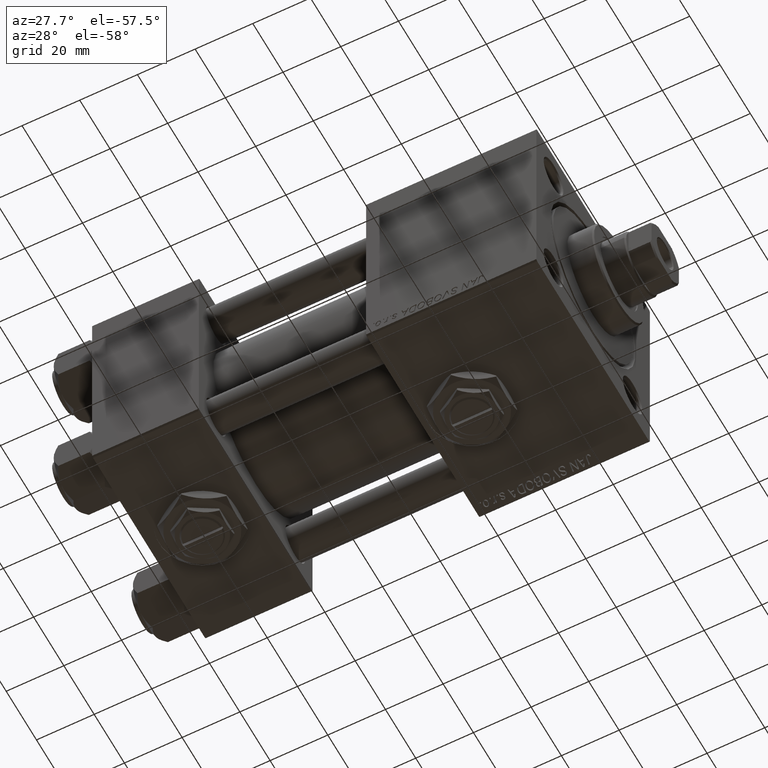
[diagram: clean part render]
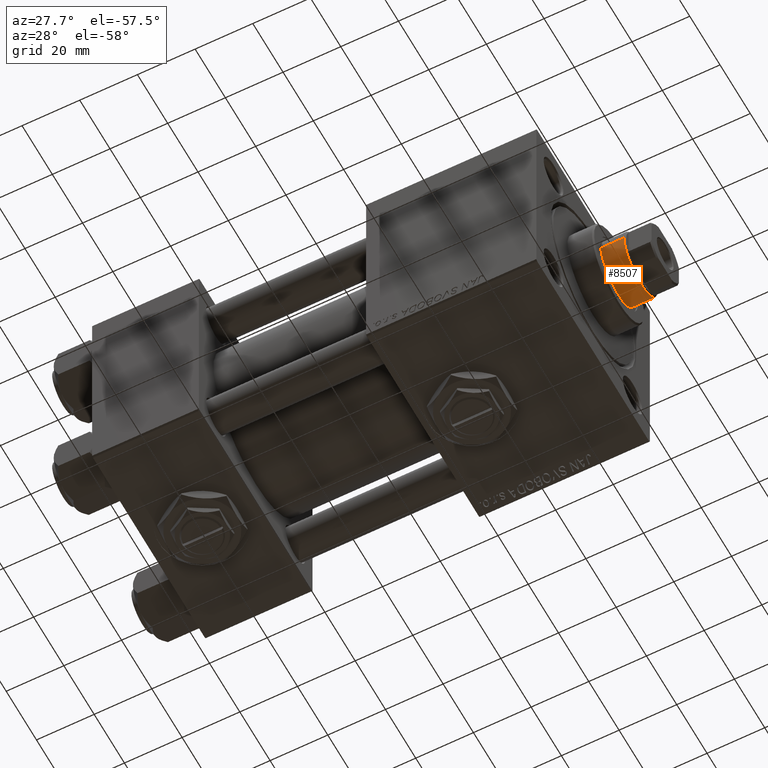
[diagram: same view with one face highlighted and labeled with its STEP entity id]
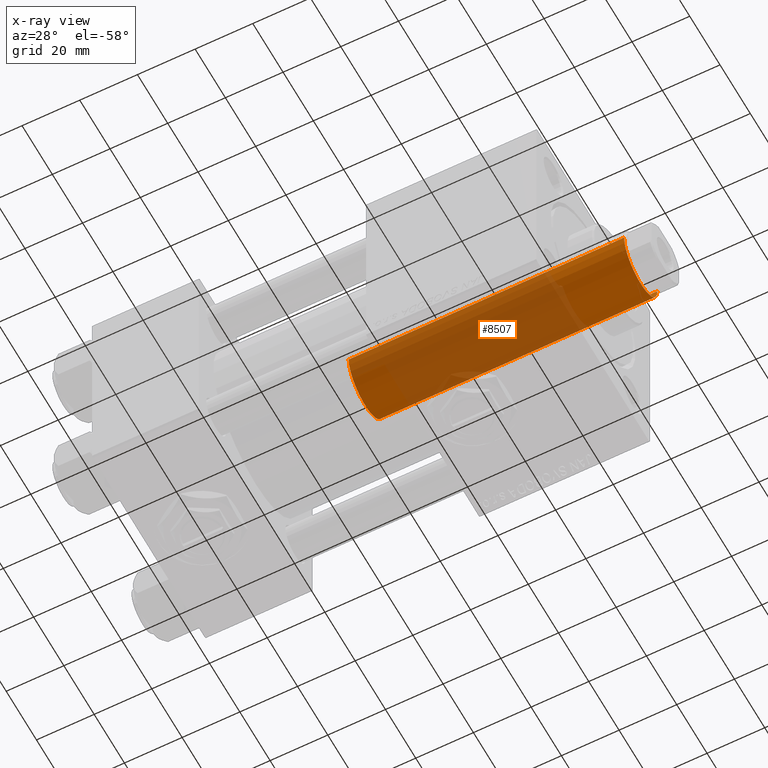
[diagram: x-ray of the same camera — body ghosted, the highlighted face saturated]
A machine part, auxiliary view. The second image highlights one B-rep face of the part: STEP entity #8507.
The next image is the same camera in x-ray: the body ghosted, the highlighted face saturated — about 67% of this face is hidden behind the body in this view.
In plain terms, the highlighted cylindrical surface (edge-blend (fillet) strip) has radius 11 mm, axis along (-1, 0, 0).
Its self-contained STEP definition (entity closure, byte-faithful):
#1091 = DIRECTION ( 'NONE',  ( -0.000000000000000000, -0.000000000000000000, -1.000000000000000000 ) ) ;
#1676 = ORIENTED_EDGE ( 'NONE', *, *, #30367, .F. ) ;
#3794 = AXIS2_PLACEMENT_3D ( 'NONE', #6280, #9973, #29791 ) ;
#5320 = DIRECTION ( 'NONE',  ( -1.000000000000000000, 0.000000000000000000, 0.000000000000000000 ) ) ;
#5605 = EDGE_CURVE ( 'NONE', #46112, #20540, #28273, .T. ) ;
#6280 = CARTESIAN_POINT ( 'NONE',  ( 0.000000000000000000, 0.000000000000000000, 133.5000000000000000 ) ) ;
#6922 = ORIENTED_EDGE ( 'NONE', *, *, #5605, .T. ) ;
#8507 = ADVANCED_FACE ( 'NONE', ( #17175 ), #29614, .T. ) ;
#9973 = DIRECTION ( 'NONE',  ( 0.000000000000000000, 0.000000000000000000, -1.000000000000000000 ) ) ;
#14553 = ORIENTED_EDGE ( 'NONE', *, *, #39588, .T. ) ;
#14852 = AXIS2_PLACEMENT_3D ( 'NONE', #33302, #41512, #5320 ) ;
#16605 = DIRECTION ( 'NONE',  ( 0.000000000000000000, 0.000000000000000000, 1.000000000000000000 ) ) ;
#17175 = FACE_OUTER_BOUND ( 'NONE', #41122, .T. ) ;
#18756 = AXIS2_PLACEMENT_3D ( 'NONE', #40939, #16605, #32740 ) ;
#20540 = VERTEX_POINT ( 'NONE', #49751 ) ;
#21909 = LINE ( 'NONE', #49947, #27039 ) ;
#23409 = CARTESIAN_POINT ( 'NONE',  ( -11.00000000000000000, 0.000000000000000000, 133.5000000000000000 ) ) ;
#25315 = VERTEX_POINT ( 'NONE', #34370 ) ;
#26163 = CARTESIAN_POINT ( 'NONE',  ( 11.00000000000000000, 1.347111479062088405E-15, 134.0000000000000000 ) ) ;
#27039 = VECTOR ( 'NONE', #37778, 1000.000000000000000 ) ;
#28273 = CIRCLE ( 'NONE', #3794, 11.00000000000000000 ) ;
#29614 = CYLINDRICAL_SURFACE ( 'NONE', #14852, 11.00000000000000000 ) ;
#29791 = DIRECTION ( 'NONE',  ( 1.000000000000000000, 0.000000000000000000, 0.000000000000000000 ) ) ;
#30367 = EDGE_CURVE ( 'NONE', #46112, #48103, #21909, .T. ) ;
#32740 = DIRECTION ( 'NONE',  ( 1.000000000000000000, 0.000000000000000000, 0.000000000000000000 ) ) ;
#33302 = CARTESIAN_POINT ( 'NONE',  ( 0.000000000000000000, 0.000000000000000000, 134.0000000000000000 ) ) ;
#34370 = CARTESIAN_POINT ( 'NONE',  ( 11.00000000000000000, 1.347111479062088405E-15, 38.00000000000000000 ) ) ;
#36679 = VECTOR ( 'NONE', #1091, 1000.000000000000000 ) ;
#37778 = DIRECTION ( 'NONE',  ( -0.000000000000000000, -0.000000000000000000, -1.000000000000000000 ) ) ;
#39588 = EDGE_CURVE ( 'NONE', #25315, #48103, #42409, .T. ) ;
#40939 = CARTESIAN_POINT ( 'NONE',  ( 0.000000000000000000, 0.000000000000000000, 38.00000000000000000 ) ) ;
#41122 = EDGE_LOOP ( 'NONE', ( #6922, #49549, #14553, #1676 ) ) ;
#41512 = DIRECTION ( 'NONE',  ( -0.000000000000000000, -0.000000000000000000, -1.000000000000000000 ) ) ;
#42409 = CIRCLE ( 'NONE', #18756, 11.00000000000000000 ) ;
#45728 = CARTESIAN_POINT ( 'NONE',  ( -11.00000000000000000, 0.000000000000000000, 38.00000000000000000 ) ) ;
#45993 = LINE ( 'NONE', #26163, #36679 ) ;
#46112 = VERTEX_POINT ( 'NONE', #23409 ) ;
#48015 = EDGE_CURVE ( 'NONE', #20540, #25315, #45993, .T. ) ;
#48103 = VERTEX_POINT ( 'NONE', #45728 ) ;
#49549 = ORIENTED_EDGE ( 'NONE', *, *, #48015, .T. ) ;
#49751 = CARTESIAN_POINT ( 'NONE',  ( 11.00000000000000000, 1.347111479062088405E-15, 133.5000000000000000 ) ) ;
#49947 = CARTESIAN_POINT ( 'NONE',  ( -11.00000000000000000, 0.000000000000000000, 134.0000000000000000 ) ) ;